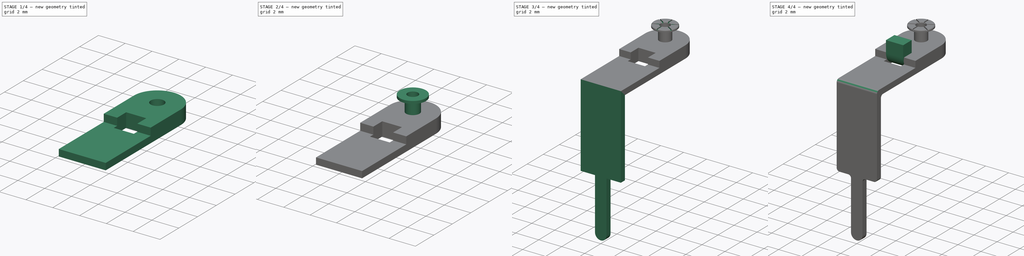
[diagram: build sequence overview — one tinted view per stage of 4, left to right]
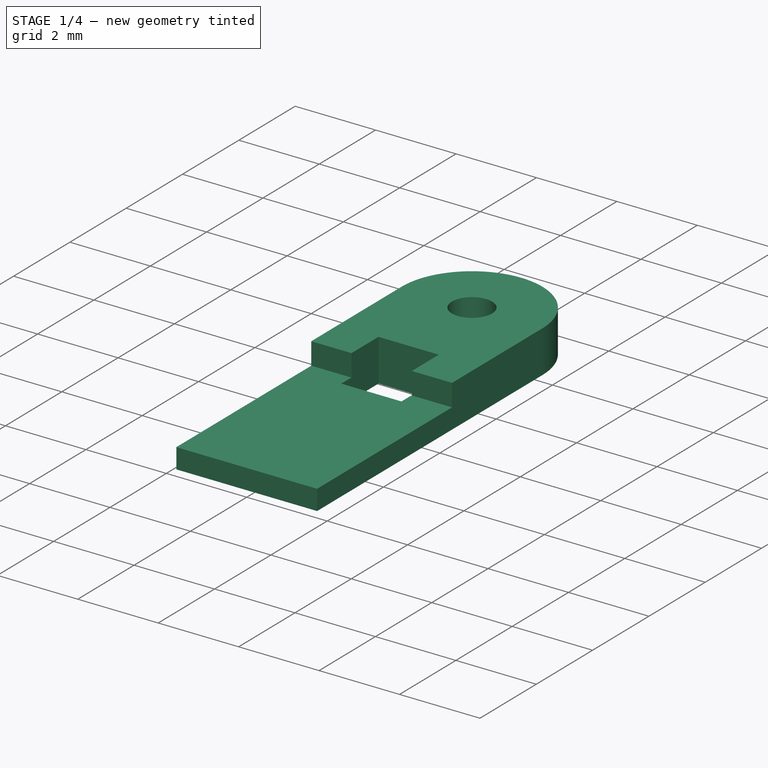
[diagram: stage 1 of 4 — iso view after this stage's code; geometry added in this stage tinted green]
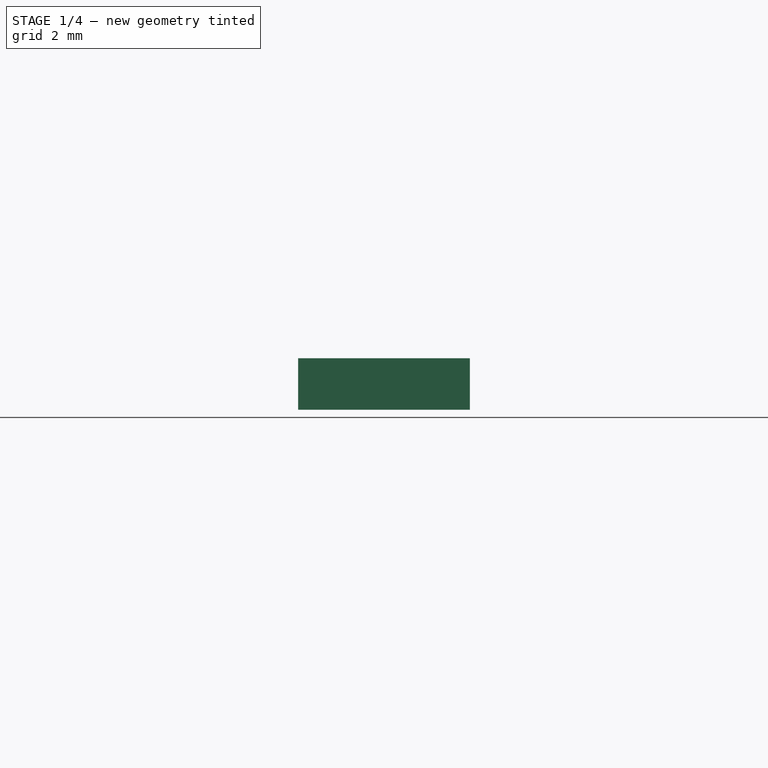
[diagram: stage 1 of 4 — front view after this stage's code; geometry added in this stage tinted green]
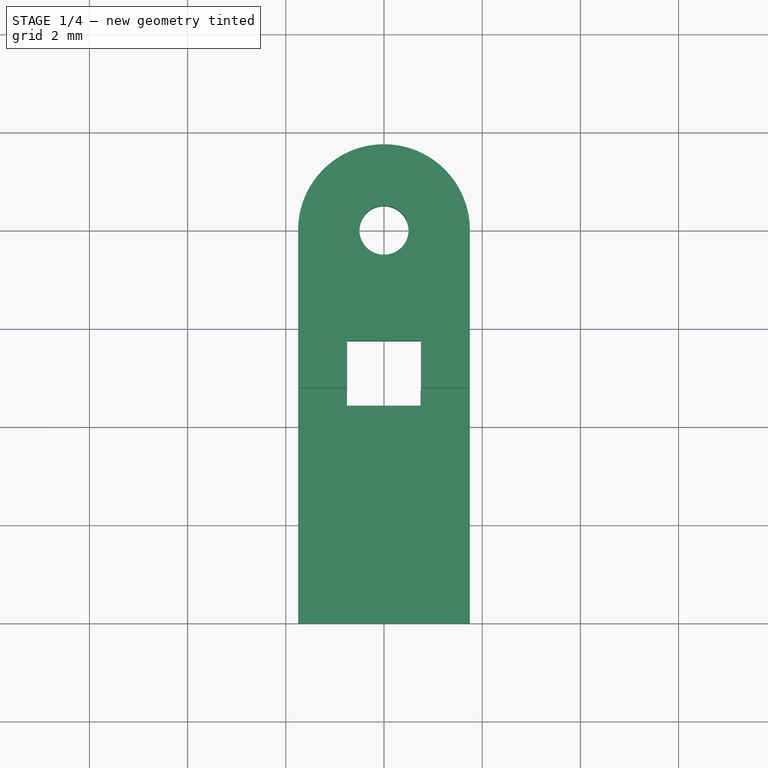
[diagram: stage 1 of 4 — top view after this stage's code; geometry added in this stage tinted green]
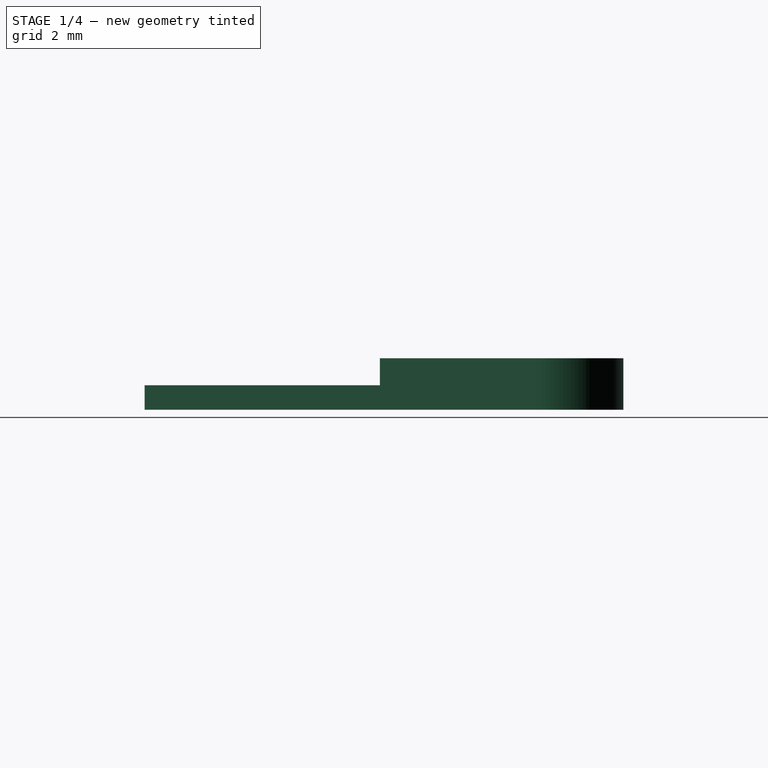
[diagram: stage 1 of 4 — right view after this stage's code; geometry added in this stage tinted green]
FCSTD DOCUMENT  (FreeCAD 0.19R16699 (Git))
Label: RV16_Terminal_Type_41
License: All rights reserved
LicenseURL: http://en.wikipedia.org/wiki/All_rights_reserved
objects: Sketcher::SketchObject×8, PartDesign::Pad×4, PartDesign::Pocket×4, PartDesign::Fillet×3, PartDesign::PolarPattern×1, PartDesign::FeaturePython×1, PartDesign::Body×1, App::Part×1
note: 30 computed .brp shape members not serialized (recipe doc carries the construction recipe); baked Part::Feature solids carry a one-line shape summary decoded from their .brp

FEATURE [Sketcher::SketchObject] Sketch
  MapMode = 5
  Support = -> [XY_Plane]
  sketch-geometry (12):
    g0: Circle CenterX=0 CenterY=0 CenterZ=0 NormalX=0 NormalY=0 NormalZ=1 AngleXU=0 Radius=0.5
    g1: ArcOfCircle CenterX=0 CenterY=0 CenterZ=0 NormalX=0 NormalY=0 NormalZ=1 AngleXU=0 Radius=1.75 StartAngle=0 EndAngle=3.14159
    g2: LineSegment StartX=1.75 StartY=-4.25 StartZ=0 EndX=1.75 EndY=0 EndZ=0
    g3: LineSegment StartX=-1.75 StartY=2e-16 StartZ=0 EndX=-1.75 EndY=-4.25 EndZ=0
    g4: GeomPoint X=0 Y=1.75 Z=0
    g5: LineSegment StartX=-0.75 StartY=-2.25 StartZ=0 EndX=0.75 EndY=-2.25 EndZ=0
    g6: LineSegment StartX=0.75 StartY=-2.25 StartZ=0 EndX=0.75 EndY=-3.25 EndZ=0
    g7: LineSegment StartX=0.75 StartY=-3.25 StartZ=0 EndX=-0.75 EndY=-3.25 EndZ=0
    g8: LineSegment StartX=-0.75 StartY=-3.25 StartZ=0 EndX=-0.75 EndY=-2.25 EndZ=0
    g9: LineSegment StartX=-1.75 StartY=-4.25 StartZ=0 EndX=-1.75 EndY=-8 EndZ=0
    g10: LineSegment StartX=-1.75 StartY=-8 StartZ=0 EndX=1.75 EndY=-8 EndZ=0
    g11: LineSegment StartX=1.75 StartY=-8 StartZ=0 EndX=1.75 EndY=-4.25 EndZ=0
  constraints (33):
    c: Radius(g0) = 0.5
    c: Coincident(g1,g0)
    c: Coincident(g2,g1)
    c: Vertical(g2)
    c: Coincident(g3,g1)
    c: PointOnObject(g4,g1)
    c: DistanceY(g3,g4) = 6
    c: DistanceX(g3,g2) = 3.5
    c: Coincident(g0,g-1)
    c: Vertical(g3)
    c: PointOnObject(g1,g-1)
    c: PointOnObject(g1,g-1)
    c: PointOnObject(g4,g-2)
    c: DistanceY(g2,g0) = 4.25
    c: Coincident(g5,g6)
    c: Coincident(g6,g7)
    c: Coincident(g7,g8)
    c: Coincident(g8,g5)
    c: Horizontal(g7)
    c: Vertical(g6)
    c: Vertical(g8)
    c: Symmetric(g5,g5,g-2)
    c: DistanceX(g5,g5) = 1.5
    c: DistanceY(g6,g6) = 1
    c: DistanceY(g2,g6) = 1
    c: Coincident(g3,g9)
    c: Vertical(g9)
    c: Coincident(g9,g10)
    c: Horizontal(g10)
    c: Coincident(g10,g11)
    c: Coincident(g11,g2)
    c: Vertical(g11)
    c: DistanceY(g9,g0) = 8
FEATURE [PartDesign::Pad] Pad
  Length = 0.5
  Length2 = 0.55
  Profile = -> Sketch
  Type = 4
FEATURE [Sketcher::SketchObject] Sketch001
  MapMode = 5
  Support = -> [XY_Plane]
  sketch-geometry (4):
    g0: LineSegment StartX=-2.81674 StartY=-8.24629 StartZ=0 EndX=2.1027 EndY=-8.24629 EndZ=0
    g1: LineSegment StartX=2.1027 StartY=-8.24629 StartZ=0 EndX=2.1027 EndY=-3.20834 EndZ=0
    g2: LineSegment StartX=2.1027 StartY=-3.20834 StartZ=0 EndX=-2.81674 EndY=-3.20834 EndZ=0
    g3: LineSegment StartX=-2.81674 StartY=-3.20834 StartZ=0 EndX=-2.81674 EndY=-8.24629 EndZ=0
  constraints (8):
    c: Coincident(g0,g1)
    c: Coincident(g1,g2)
    c: Coincident(g2,g3)
    c: Coincident(g3,g0)
    c: Horizontal(g0)
    c: Horizontal(g2)
    c: Vertical(g1)
    c: Vertical(g3)
FEATURE [PartDesign::Pocket] Pocket
  BaseFeature = -> Pad
  Length = 0.05
  Length2 = 1.55
  Profile = -> Sketch001
  Reversed = true
  Type = 4
FEATURE [Sketcher::SketchObject] Sketch002
  MapMode = 5
  Support = -> [XY_Plane]
  sketch-geometry (2):
    g0: Circle CenterX=0 CenterY=0 CenterZ=0 NormalX=0 NormalY=0 NormalZ=1 AngleXU=0 Radius=0.51
    g1: Circle CenterX=0 CenterY=0 CenterZ=0 NormalX=0 NormalY=0 NormalZ=1 AngleXU=0 Radius=0.4
  constraints (4):
    c: Coincident(g0,g-1)
    c: Coincident(g1,g0)
    c: Radius(g0) = 0.51
    c: Radius(g1) = 0.4
FEATURE [Sketcher::SketchObject] Sketch003
  AttachmentOffset = pos=(0,0,1.5) rot=(0,0,1;0rad)
  MapMode = 5
  Placement = pos=(0,0,1.5) rot=(0,0,1;0rad)
  Support = -> [XY_Plane]
  sketch-geometry (1):
    g0: Circle CenterX=0 CenterY=0 CenterZ=0 NormalX=0 NormalY=0 NormalZ=1 AngleXU=0 Radius=1
  constraints (2):
    c: Coincident(g0,g-1)
    c: Radius(g0) = 1
FEATURE [Sketcher::SketchObject] Sketch004
  AttachmentOffset = pos=(0,0,1.7) rot=(0,0,1;0rad)
  MapMode = 5
  Placement = pos=(0,0,1.7) rot=(0,0,1;0rad)
  Support = -> [XY_Plane]
  sketch-geometry (1):
    g0: Circle CenterX=0 CenterY=0 CenterZ=0 NormalX=0 NormalY=0 NormalZ=1 AngleXU=0 Radius=0.4
  constraints (2):
    c: Coincident(g0,g-1)
    c: Radius(g0) = 0.4
FEATURE [Sketcher::SketchObject] Sketch005
  AttachmentOffset = pos=(0,0,1.7) rot=(0,0,1;0rad)
  MapMode = 5
  Placement = pos=(0,0,1.7) rot=(0,0,1;0rad)
  Support = -> [XY_Plane]
  sketch-geometry (4):
    g0: LineSegment StartX=-0.05 StartY=0 StartZ=0 EndX=-0.05 EndY=1.7847 EndZ=0
    g1: LineSegment StartX=0.05 StartY=1.7847 StartZ=0 EndX=0.05 EndY=0 EndZ=0
    g2: LineSegment StartX=-0.05 StartY=1.7847 StartZ=0 EndX=0.05 EndY=1.7847 EndZ=0
    g3: LineSegment StartX=-0.05 StartY=0 StartZ=0 EndX=0.05 EndY=0 EndZ=0
  constraints (10):
    c: PointOnObject(g0,g-1)
    c: Vertical(g0)
    c: PointOnObject(g1,g-1)
    c: Vertical(g1)
    c: Coincident(g2,g0)
    c: Coincident(g2,g1)
    c: Coincident(g3,g0)
    c: Coincident(g3,g1)
    c: DistanceX(g2,g2) = 0.1
    c: Symmetric(g1,g0,g-2)
FEATURE [Sketcher::SketchObject] Sketch006
  MapMode = 5
  Support = -> [XY_Plane]
  sketch-geometry (4):
    g0: LineSegment StartX=-0.753187 StartY=-3.24536 StartZ=0 EndX=0.743052 EndY=-3.24536 EndZ=0
    g1: LineSegment StartX=0.743052 StartY=-3.24536 StartZ=0 EndX=0.743052 EndY=-3.56595 EndZ=0
    g2: LineSegment StartX=0.743052 StartY=-3.56595 StartZ=0 EndX=-0.753187 EndY=-3.56595 EndZ=0
    g3: LineSegment StartX=-0.753187 StartY=-3.56595 StartZ=0 EndX=-0.753187 EndY=-3.24536 EndZ=0
  constraints (8):
    c: Coincident(g0,g1)
    c: Coincident(g1,g2)
    c: Coincident(g2,g3)
    c: Coincident(g3,g0)
    c: Horizontal(g0)
    c: Horizontal(g2)
    c: Vertical(g1)
    c: Vertical(g3)
FEATURE [PartDesign::Pocket] Pocket003
  BaseFeature = -> Pocket
  Length = 5
  Length2 = 100
  Profile = -> Sketch006
  Type = 0
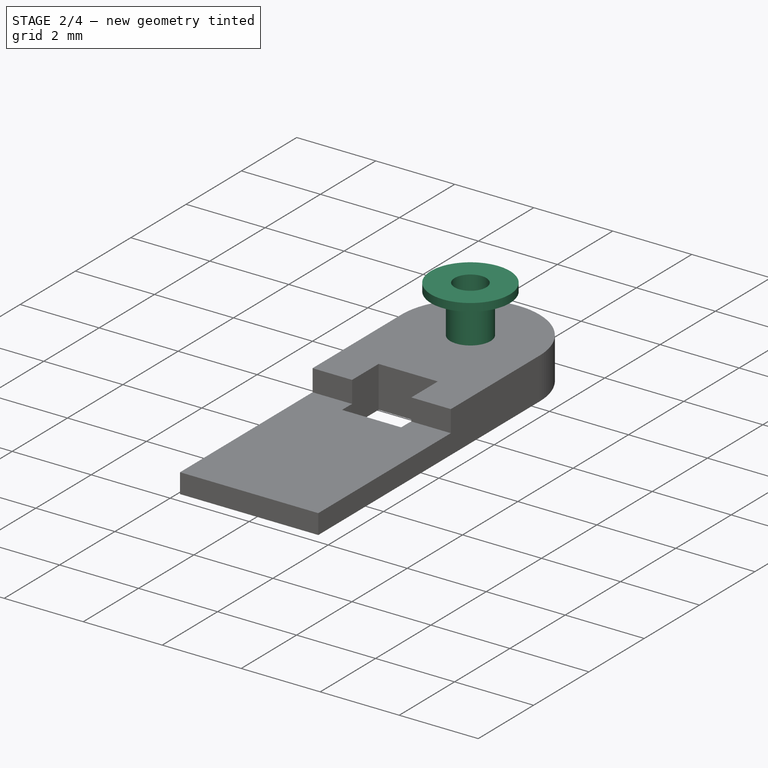
[diagram: stage 2 of 4 — iso view after this stage's code; geometry added in this stage tinted green]
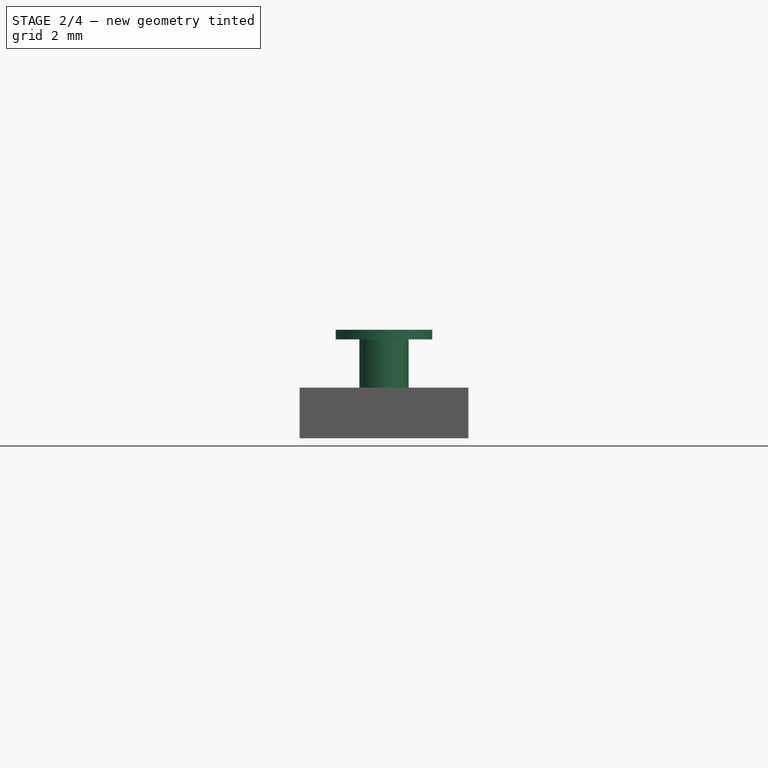
[diagram: stage 2 of 4 — front view after this stage's code; geometry added in this stage tinted green]
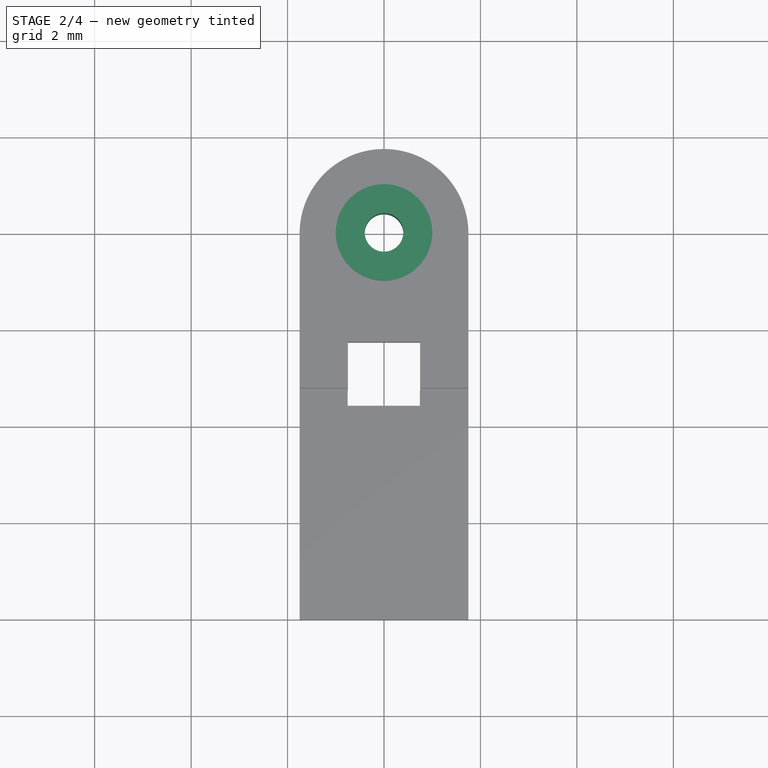
[diagram: stage 2 of 4 — top view after this stage's code; geometry added in this stage tinted green]
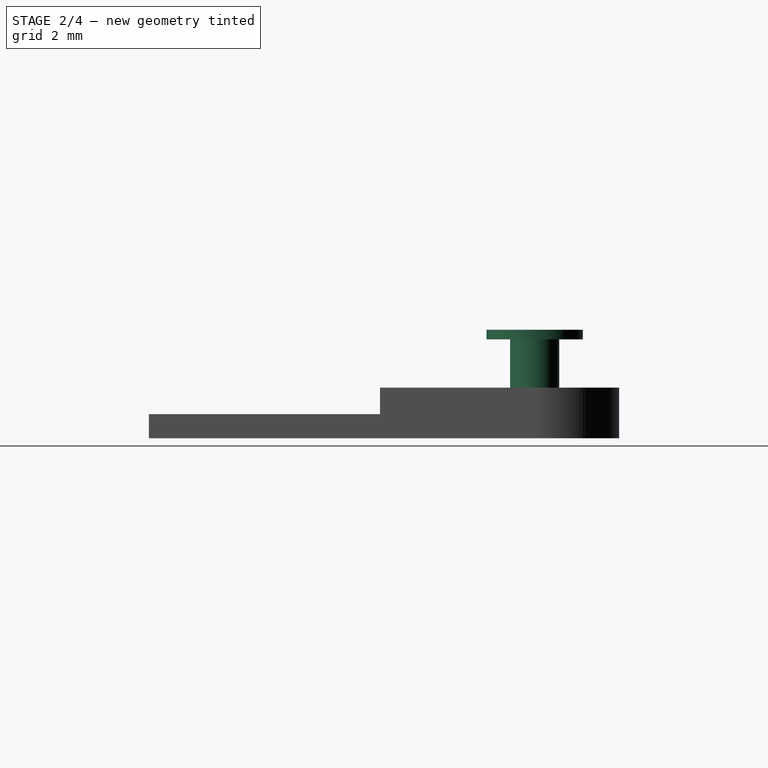
[diagram: stage 2 of 4 — right view after this stage's code; geometry added in this stage tinted green]
FEATURE [PartDesign::Pad] Pad001
  BaseFeature = -> Pocket003
  Length = 1.5
  Length2 = 100
  Profile = -> Sketch002
  Type = 0
FEATURE [PartDesign::Pad] Pad002
  BaseFeature = -> Pad001
  Length = 0.2
  Length2 = 100
  Profile = -> Sketch003
  Type = 0
FEATURE [PartDesign::Pocket] Pocket001
  BaseFeature = -> Pad002
  Length = 1
  Length2 = 100
  Profile = -> Sketch004
  Type = 0
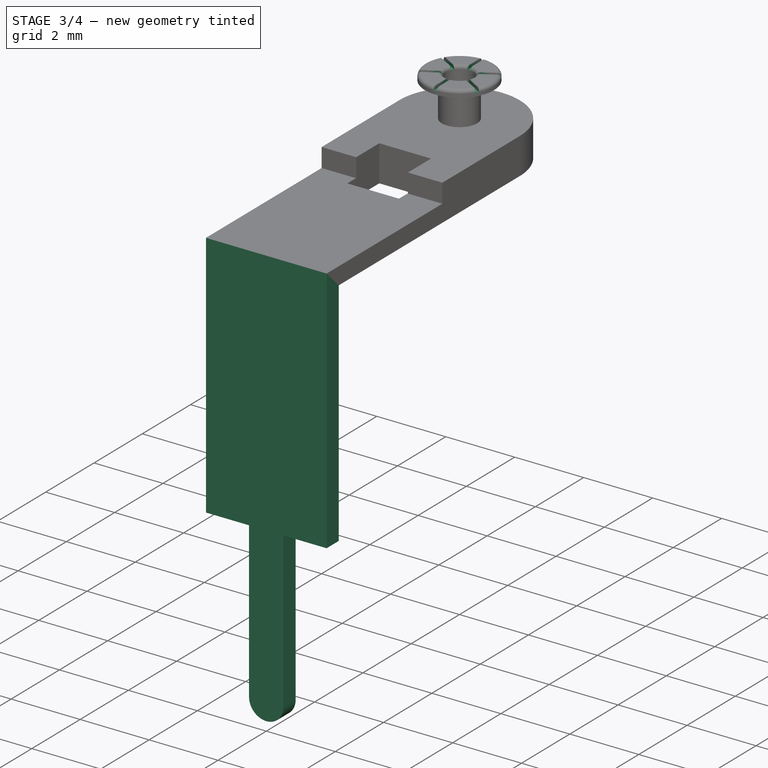
[diagram: stage 3 of 4 — iso view after this stage's code; geometry added in this stage tinted green]
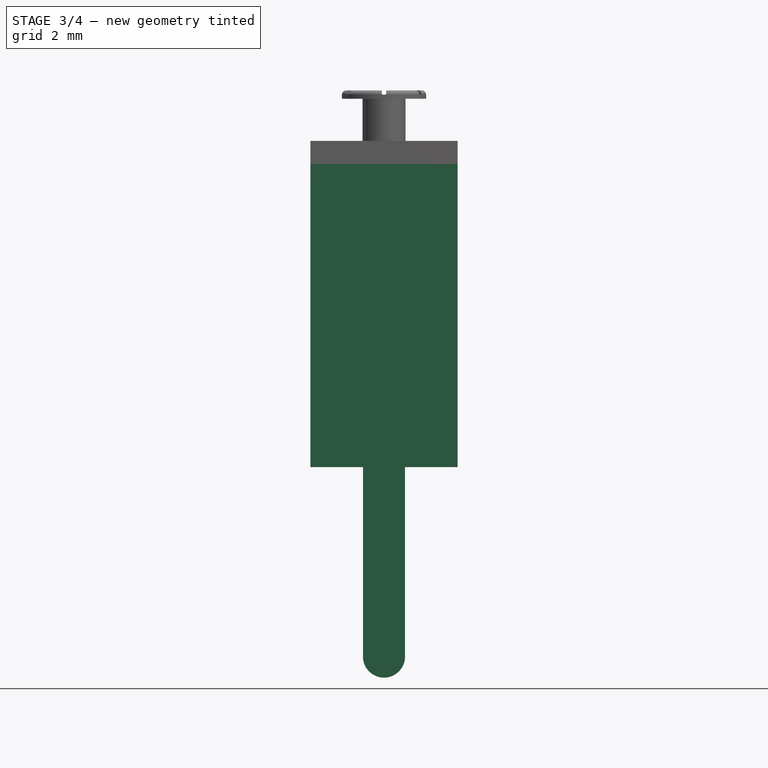
[diagram: stage 3 of 4 — front view after this stage's code; geometry added in this stage tinted green]
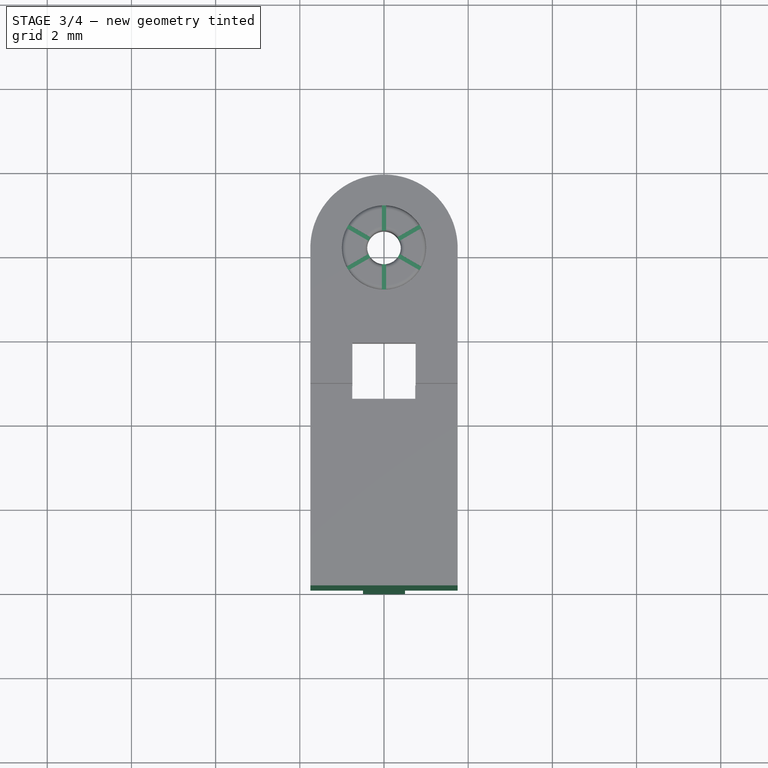
[diagram: stage 3 of 4 — top view after this stage's code; geometry added in this stage tinted green]
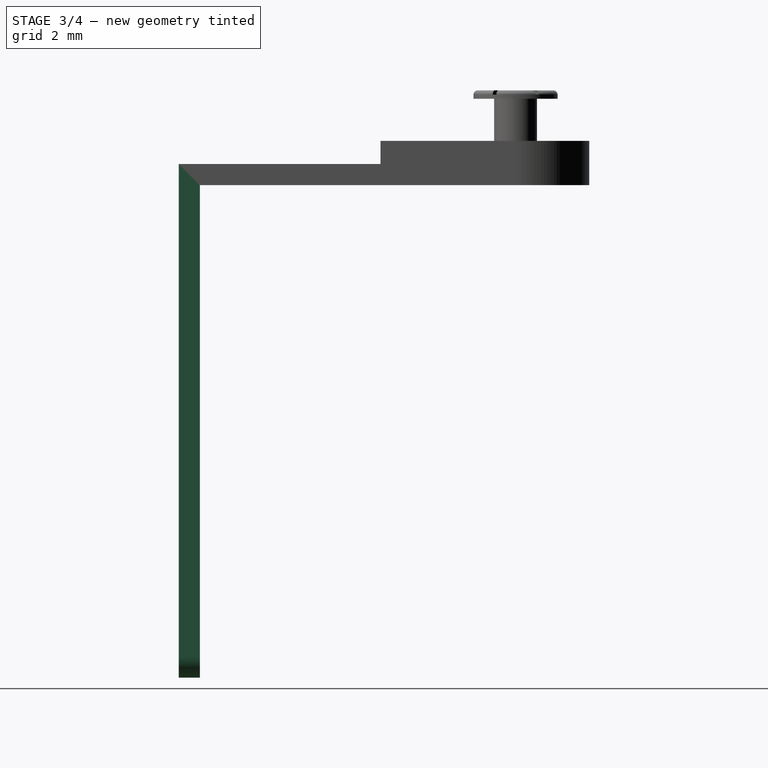
[diagram: stage 3 of 4 — right view after this stage's code; geometry added in this stage tinted green]
FEATURE [PartDesign::Fillet] Fillet
  Base = -> Pocket001 [Edge5,Edge3]
  BaseFeature = -> Pocket001
  Radius = 0.1
FEATURE [PartDesign::Pocket] Pocket002
  BaseFeature = -> Fillet
  Length = 0.1
  Length2 = 100
  Profile = -> Sketch005
  Type = 0
FEATURE [PartDesign::PolarPattern] PolarPattern
  Angle = 360
  Axis = -> Sketch005 [N_Axis]
  BaseFeature = -> Pocket002
  Occurrences = 6
  Originals = -> [Pocket002]
FEATURE [Sketcher::SketchObject] Sketch007
  AttachmentOffset = pos=(0,0,8) rot=(0,0,1;0rad)
  MapMode = 5
  Placement = pos=(0,-8,-1.8e-15) rot=(1,0,0;1.5708rad)
  Support = -> [XZ_Plane]
  sketch-geometry (9):
    g0: LineSegment StartX=-1.75 StartY=-0.55 StartZ=0 EndX=1.75 EndY=-0.55 EndZ=0
    g1: LineSegment StartX=1.75 StartY=-0.55 StartZ=0 EndX=1.75 EndY=-7.25 EndZ=0
    g2: LineSegment StartX=-1.75 StartY=-7.25 StartZ=0 EndX=-1.75 EndY=-0.55 EndZ=0
    g3: LineSegment StartX=-1.75 StartY=-7.25 StartZ=0 EndX=-0.5 EndY=-7.25 EndZ=0
    g4: LineSegment StartX=-0.5 StartY=-7.25 StartZ=0 EndX=-0.5 EndY=-11.75 EndZ=0
    g5: LineSegment StartX=0.5 StartY=-11.75 StartZ=0 EndX=0.5 EndY=-7.25 EndZ=0
    g6: LineSegment StartX=0.5 StartY=-7.25 StartZ=0 EndX=1.75 EndY=-7.25 EndZ=0
    g7: ArcOfCircle CenterX=0 CenterY=-11.75 CenterZ=0 NormalX=0 NormalY=0 NormalZ=1 AngleXU=0 Radius=0.5 StartAngle=3.14159 EndAngle=6.28319
    g8: GeomPoint X=0 Y=-12.25 Z=0
  constraints (25):
    c: Coincident(g0,g1)
    c: Coincident(g2,g0)
    c: Vertical(g1)
    c: Vertical(g2)
    c: Symmetric(g0,g0,g-2)
    c: DistanceX(g0,g0) = 3.5
    c: DistanceY(g0,g-1) = 0.55
    c: Equal(g2,g1)
    c: DistanceY(g1,g1) = 6.7
    c: Coincident(g2,g3)
    c: Horizontal(g3)
    c: Coincident(g3,g4)
    c: Vertical(g4)
    c: Coincident(g5,g6)
    c: Coincident(g6,g1)
    c: Horizontal(g6)
    c: Symmetric(g5,g4,g-2)
    c: Equal(g6,g3)
    c: DistanceX(g4,g5) = 1
    c: Coincident(g7,g4)
    c: Coincident(g7,g5)
    c: Horizontal(g7,g4)
    c: PointOnObject(g8,g7)
    c: PointOnObject(g8,g-2)
    c: DistanceY(g8,g1) = 5
FEATURE [PartDesign::Pad] Pad003
  BaseFeature = -> PolarPattern
  Length = 0.5
  Length2 = 100
  Profile = -> Sketch007
  Refine = true
  Reversed = true
  Type = 0
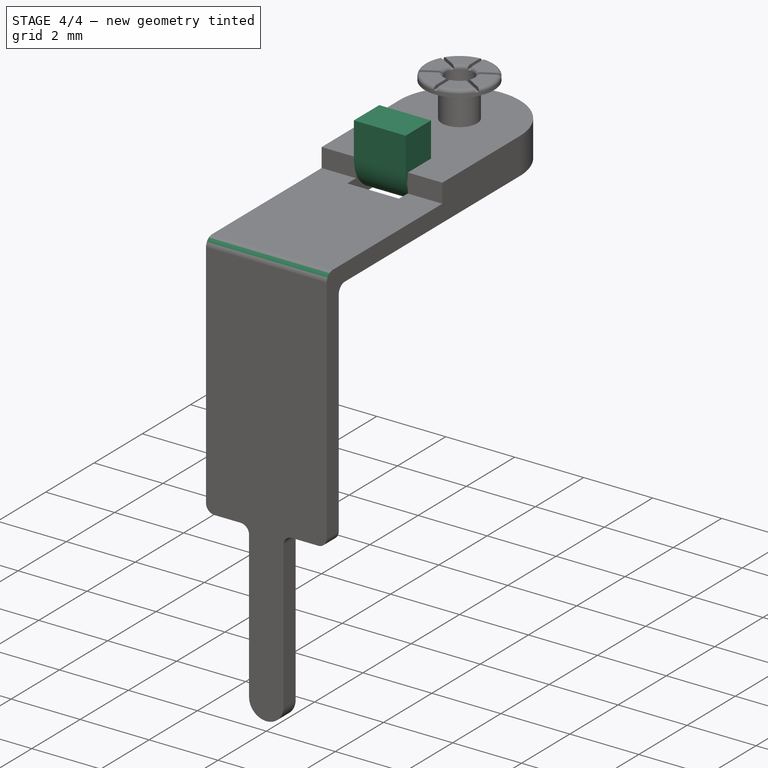
[diagram: stage 4 of 4 — iso view after this stage's code; geometry added in this stage tinted green]
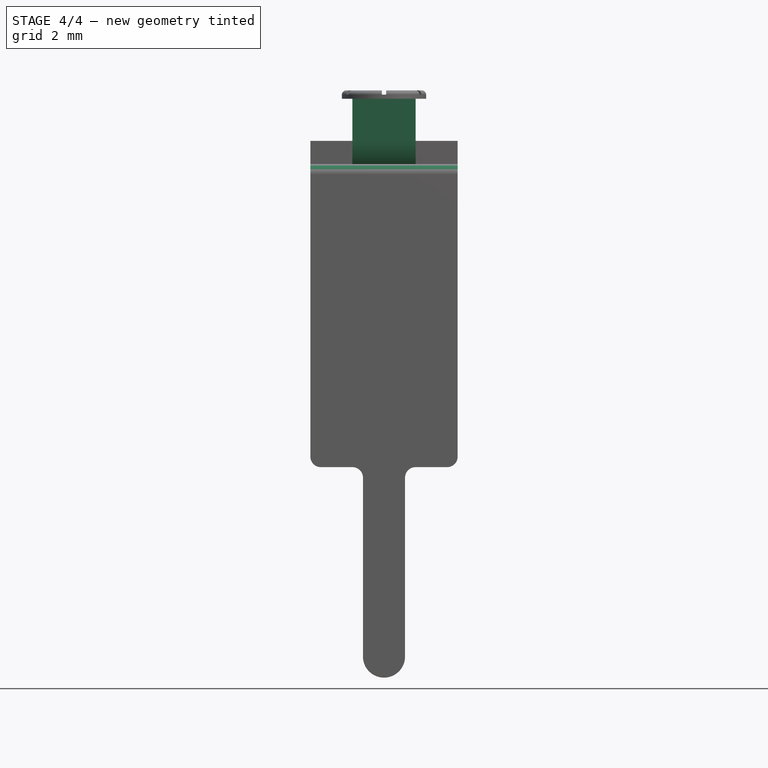
[diagram: stage 4 of 4 — front view after this stage's code; geometry added in this stage tinted green]
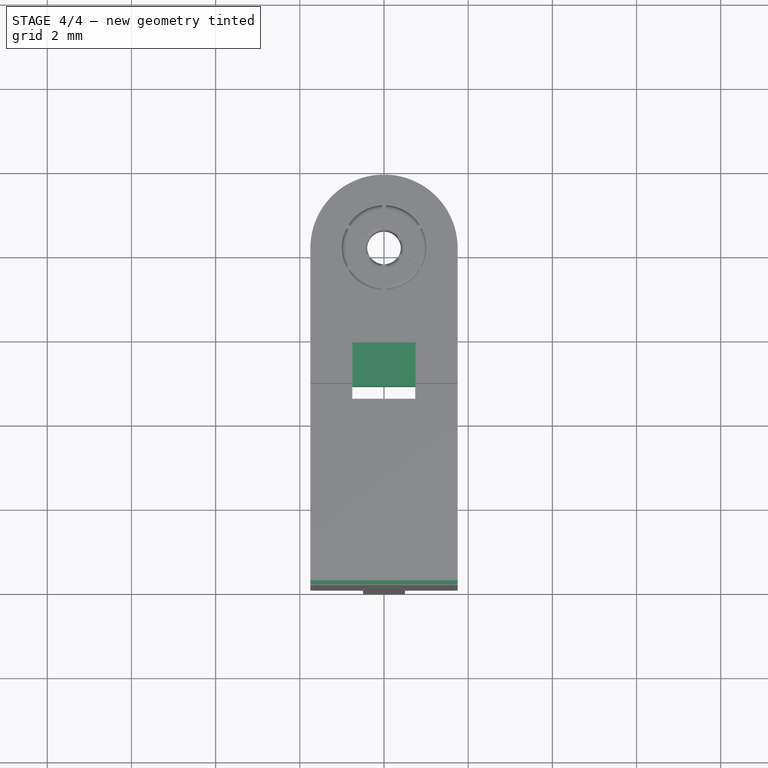
[diagram: stage 4 of 4 — top view after this stage's code; geometry added in this stage tinted green]
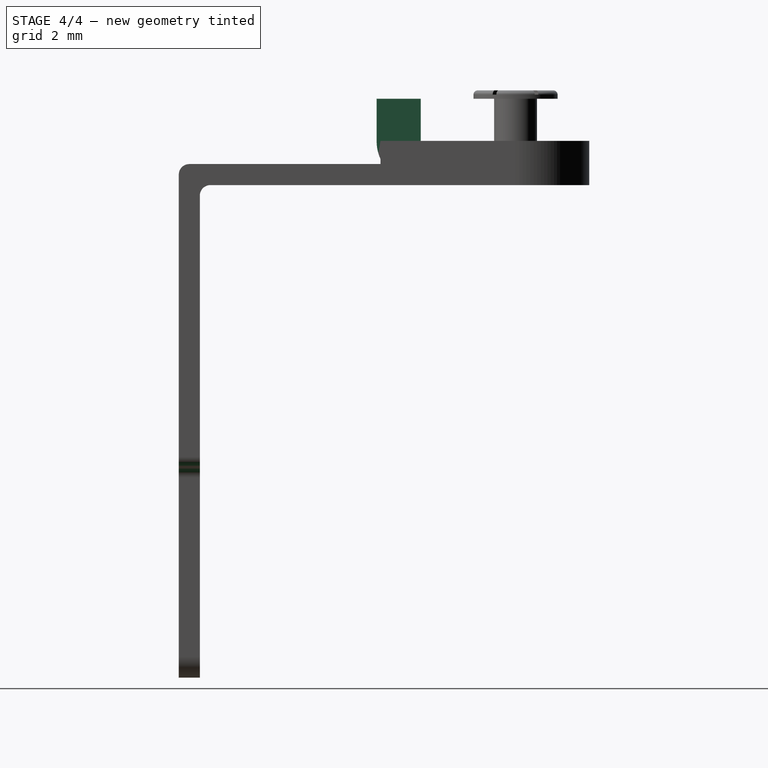
[diagram: stage 4 of 4 — right view after this stage's code; geometry added in this stage tinted green]
FEATURE [PartDesign::FeaturePython] Bend  # WARN: FeaturePython — macro-defined, semantics opaque (R4)
  AutoMiter = true
  BaseFeature = -> Pad003
  BendType = 0
  LengthList = [1]
  ReliefFactor = 0.7
  UseReliefFactor = false
  angle = 90
  baseObject = -> Pad003 [Face46]
  bendAList = [90]
  extend1 = 0
  extend2 = 0
  gap1 = 0
  gap2 = 0
  invert = false
  kfactor = 0.5
  length = 1
  miterangle1 = 0
  miterangle2 = 0
  offset = 0
  radius = 0.001
  reliefType = 0
  reliefd = 1
  reliefw = 0.8
  sketchflip = false
  sketchinvert = false
  unfold = false
FEATURE [PartDesign::Fillet] Fillet001
  Base = -> Bend [Edge55,Edge48,Edge86,Edge85]
  BaseFeature = -> Bend
  Radius = 0.25
FEATURE [PartDesign::Fillet] Fillet002
  Base = -> Fillet001 [Edge35,Edge17]
  BaseFeature = -> Fillet001
  Radius = 0.25
FEATURE [PartDesign::Body] Body  label="RV16_Terminal_Type_41_1"
  Group = -> [Sketch,Pad,Sketch001,Pocket,Sketch002,Sketch006,Pocket003,Pad001,Sketch003,Pad002,Sketch004,Pocket001,Sketch005,Fillet,Pocket002,PolarPattern,Sketch007,Pad003,Bend,Fillet001,Fillet002]
  Origin = -> Origin
  Tip = -> Fillet002
FEATURE [App::Part] Part  label="RV16_Terminal_Type_41"
  Group = -> [Body]
  Origin = -> Origin001
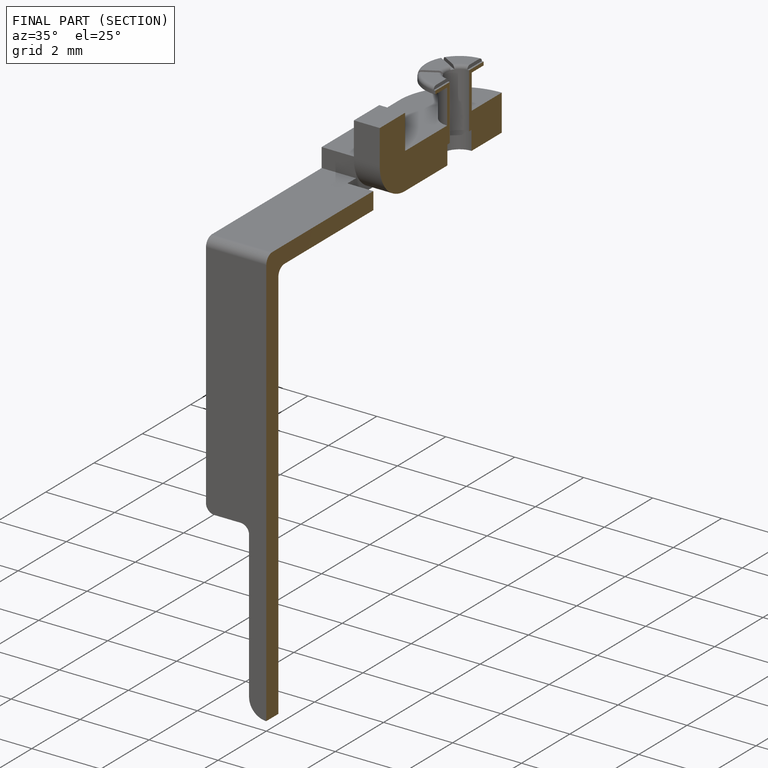
[diagram: finished part — half-section view (interior)]
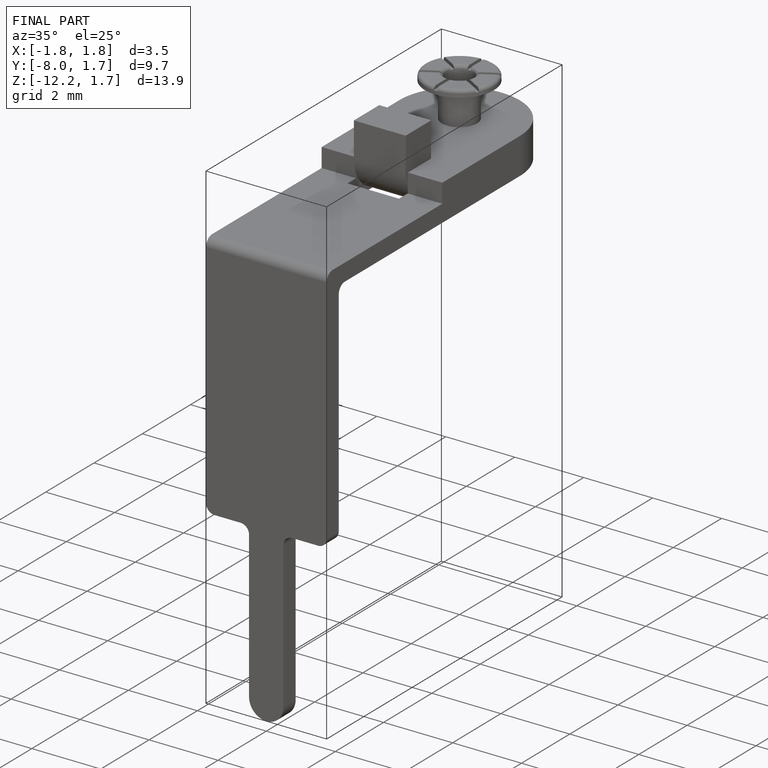
[diagram: finished part — iso view with bounding-box wireframe]
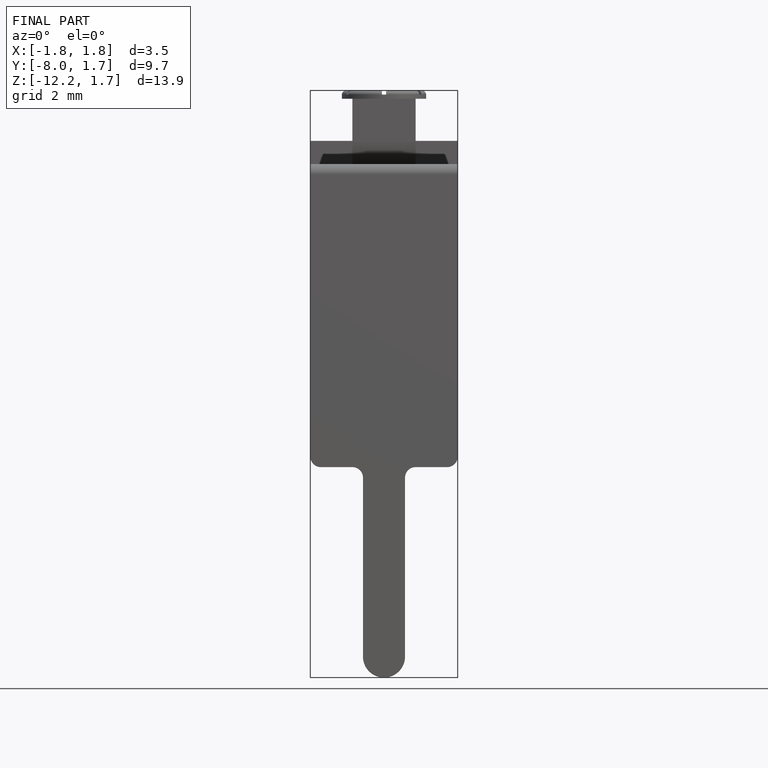
[diagram: finished part — front view with bounding-box wireframe]
